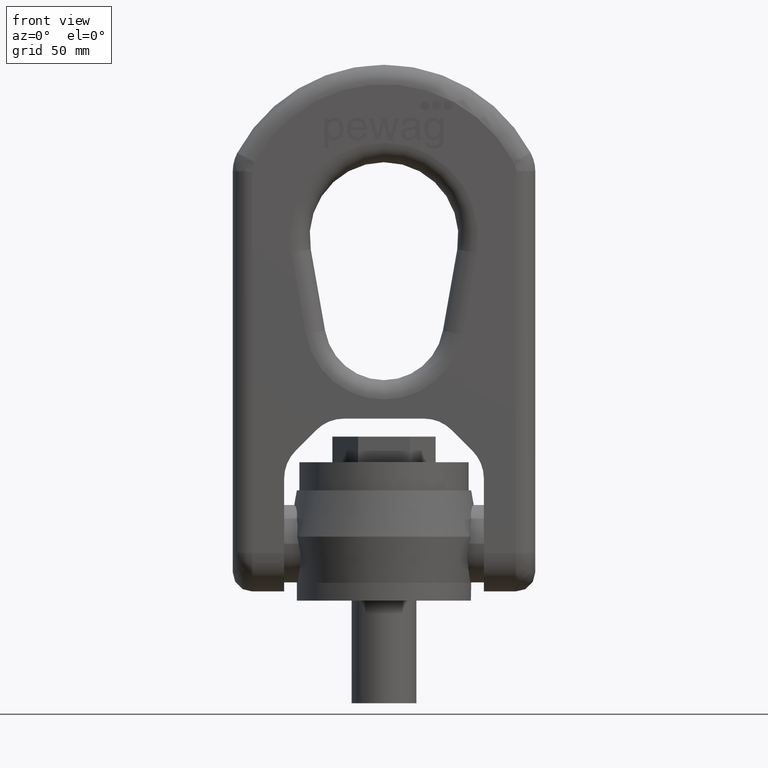
[diagram: clean part render]
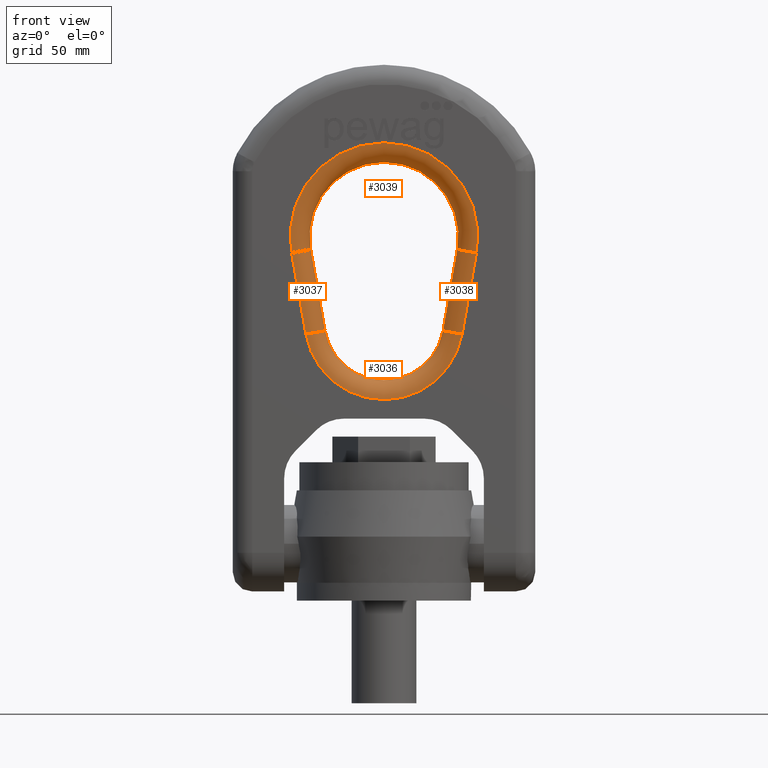
[diagram: same view with one multi-face feature highlighted, each face labeled with its STEP entity id]
A machine part, front view. The highlighted faces form ONE feature: a constant-radius fillet chain: 4 tangent blend faces with common blend radius 7.6 mm. The faces share edges in the B-rep.
Their STEP definitions:
[1] entity #3039 (Torus):
#206=TOROIDAL_SURFACE('',#6063,36.6,7.6);
#2664=FACE_OUTER_BOUND('',#3432,.T.);
#3039=ADVANCED_FACE('',(#2664),#206,.T.);
#3432=EDGE_LOOP('',(#4693,#4694,#4695,#4696));
#4693=ORIENTED_EDGE('',*,*,#5747,.T.);
#4694=ORIENTED_EDGE('',*,*,#5356,.F.);
#4695=ORIENTED_EDGE('',*,*,#5748,.T.);
#4696=ORIENTED_EDGE('',*,*,#5177,.F.);
#4744=VERTEX_POINT('',#7071);
#4745=VERTEX_POINT('',#7073);
#4914=VERTEX_POINT('',#7727);
#4916=VERTEX_POINT('',#7733);
#5177=EDGE_CURVE('',#4744,#4745,#5763,.T.);
#5356=EDGE_CURVE('',#4916,#4914,#5788,.T.);
#5747=EDGE_CURVE('',#4744,#4914,#5825,.T.);
#5748=EDGE_CURVE('',#4916,#4745,#5826,.T.);
#5763=CIRCLE('',#5869,36.6);
#5788=CIRCLE('',#5897,29.);
#5825=CIRCLE('',#6059,7.6);
#5826=CIRCLE('',#6061,7.6);
#5869=AXIS2_PLACEMENT_3D('',#7072,#6194,#6195);
#5897=AXIS2_PLACEMENT_3D('',#7734,#6336,#6337);
#6059=AXIS2_PLACEMENT_3D('',#9840,#6926,#6927);
#6061=AXIS2_PLACEMENT_3D('',#9842,#6930,#6931);
#6063=AXIS2_PLACEMENT_3D('',#9844,#6934,#6935);
#6194=DIRECTION('',(0.,1.,0.));
#6195=DIRECTION('',(0.,0.,-1.));
#6336=DIRECTION('',(0.,-1.,0.));
#6337=DIRECTION('',(0.,0.,-1.));
#6926=DIRECTION('',(-0.173648177666931,0.,0.984807753012208));
#6927=DIRECTION('',(0.984807753012208,0.,0.173648177666932));
#6930=DIRECTION('',(0.173648177666931,1.58542931768114E-16,0.984807753012208));
#6931=DIRECTION('',(0.984807753012208,0.,-0.173648177666932));
#6934=DIRECTION('',(0.,-1.,0.));
#6935=DIRECTION('',(0.,0.,-1.));
#7071=CARTESIAN_POINT('',(-36.0439637602468,-15.2,135.64447669739));
#7072=CARTESIAN_POINT('',(0.,-15.2,142.));
#7073=CARTESIAN_POINT('',(36.0439637602468,-15.2,135.64447669739));
#7727=CARTESIAN_POINT('',(-28.5594248373541,-7.6,136.964202847659));
#7733=CARTESIAN_POINT('',(28.5594248373541,-7.6,136.964202847659));
#7734=CARTESIAN_POINT('',(0.,-7.6,142.));
#9840=CARTESIAN_POINT('',(-36.0439637602468,-7.6,135.64447669739));
#9842=CARTESIAN_POINT('',(36.0439637602468,-7.6,135.64447669739));
#9844=CARTESIAN_POINT('',(0.,-7.6,142.));
[2] entity #3038 (Cylinder):
#1775=LINE('',#7074,#2083);
#1863=LINE('',#7740,#2171);
#2083=VECTOR('',#6196,1.);
#2171=VECTOR('',#6342,1.);
#2663=FACE_OUTER_BOUND('',#3431,.T.);
#3038=ADVANCED_FACE('',(#2663),#3068,.T.);
#3068=CYLINDRICAL_SURFACE('',#6062,7.6);
#3431=EDGE_LOOP('',(#4689,#4690,#4691,#4692));
#4689=ORIENTED_EDGE('',*,*,#5745,.T.);
#4690=ORIENTED_EDGE('',*,*,#5178,.F.);
#4691=ORIENTED_EDGE('',*,*,#5748,.F.);
#4692=ORIENTED_EDGE('',*,*,#5359,.F.);
#4745=VERTEX_POINT('',#7073);
#4746=VERTEX_POINT('',#7075);
#4916=VERTEX_POINT('',#7733);
#4918=VERTEX_POINT('',#7739);
#5178=EDGE_CURVE('',#4745,#4746,#1775,.T.);
#5359=EDGE_CURVE('',#4918,#4916,#1863,.T.);
#5745=EDGE_CURVE('',#4918,#4746,#5823,.T.);
#5748=EDGE_CURVE('',#4916,#4745,#5826,.T.);
#5823=CIRCLE('',#6056,7.6);
#5826=CIRCLE('',#6061,7.6);
#6056=AXIS2_PLACEMENT_3D('',#9837,#6920,#6921);
#6061=AXIS2_PLACEMENT_3D('',#9842,#6930,#6931);
#6062=AXIS2_PLACEMENT_3D('',#9843,#6932,#6933);
#6196=DIRECTION('',(-0.173648177666931,0.,-0.984807753012208));
#6342=DIRECTION('',(0.173648177666931,0.,0.984807753012208));
#6920=DIRECTION('',(0.17364817766693,-7.92714658840564E-17,0.984807753012208));
#6921=DIRECTION('',(0.984807753012208,0.,-0.17364817766693));
#6930=DIRECTION('',(0.173648177666931,1.58542931768114E-16,0.984807753012208));
#6931=DIRECTION('',(0.984807753012208,0.,-0.173648177666932));
#6932=DIRECTION('',(0.173648177666931,0.,0.984807753012208));
#6933=DIRECTION('',(0.984807753012208,0.,-0.173648177666932));
#7073=CARTESIAN_POINT('',(36.0439637602468,-15.2,135.64447669739));
#7074=CARTESIAN_POINT('',(30.4564260915328,-15.2,103.955975900383));
#7075=CARTESIAN_POINT('',(30.4564260915328,-15.2,103.955975900383));
#7733=CARTESIAN_POINT('',(28.5594248373541,-7.6,136.964202847659));
#7739=CARTESIAN_POINT('',(22.97188716864,-7.6,105.275702050652));
#7740=CARTESIAN_POINT('',(28.5594248373541,-7.6,136.964202847659));
#9837=CARTESIAN_POINT('',(30.4564260915328,-7.6,103.955975900383));
#9842=CARTESIAN_POINT('',(36.0439637602468,-7.6,135.64447669739));
#9843=CARTESIAN_POINT('',(36.4197358914007,-7.6,137.775586353122));
[3] entity #3036 (Torus):
#205=TOROIDAL_SURFACE('',#6058,30.9262655562737,7.6);
#2661=FACE_OUTER_BOUND('',#3429,.T.);
#3036=ADVANCED_FACE('',(#2661),#205,.T.);
#3429=EDGE_LOOP('',(#4681,#4682,#4683,#4684));
#4681=ORIENTED_EDGE('',*,*,#5745,.F.);
#4682=ORIENTED_EDGE('',*,*,#5373,.F.);
#4683=ORIENTED_EDGE('',*,*,#5746,.F.);
#4684=ORIENTED_EDGE('',*,*,#5179,.F.);
#4743=VERTEX_POINT('',#7070);
#4746=VERTEX_POINT('',#7075);
#4911=VERTEX_POINT('',#7722);
#4918=VERTEX_POINT('',#7739);
#5179=EDGE_CURVE('',#4746,#4743,#5764,.T.);
#5373=EDGE_CURVE('',#4911,#4918,#5794,.T.);
#5745=EDGE_CURVE('',#4918,#4746,#5823,.T.);
#5746=EDGE_CURVE('',#4743,#4911,#5824,.T.);
#5764=CIRCLE('',#5870,30.9262655562737);
#5794=CIRCLE('',#5908,23.3262655562737);
#5823=CIRCLE('',#6056,7.6);
#5824=CIRCLE('',#6057,7.6);
#5870=AXIS2_PLACEMENT_3D('',#7076,#6197,#6198);
#5908=AXIS2_PLACEMENT_3D('',#7770,#6369,#6370);
#6056=AXIS2_PLACEMENT_3D('',#9837,#6920,#6921);
#6057=AXIS2_PLACEMENT_3D('',#9838,#6922,#6923);
#6058=AXIS2_PLACEMENT_3D('',#9839,#6924,#6925);
#6197=DIRECTION('',(0.,1.,0.));
#6198=DIRECTION('',(0.,0.,-1.));
#6369=DIRECTION('',(0.,-1.,0.));
#6370=DIRECTION('',(0.,0.,-1.));
#6920=DIRECTION('',(0.17364817766693,-7.92714658840564E-17,0.984807753012208));
#6921=DIRECTION('',(0.984807753012208,0.,-0.17364817766693));
#6922=DIRECTION('',(-0.173648177666932,0.,0.984807753012208));
#6923=DIRECTION('',(0.984807753012208,0.,0.173648177666932));
#6924=DIRECTION('',(0.,-1.,0.));
#6925=DIRECTION('',(0.,0.,-1.));
#7070=CARTESIAN_POINT('',(-30.4564260915328,-15.2,103.955975900383));
#7075=CARTESIAN_POINT('',(30.4564260915328,-15.2,103.955975900383));
#7076=CARTESIAN_POINT('',(0.,-15.2,109.326265556274));
#7722=CARTESIAN_POINT('',(-22.97188716864,-7.6,105.275702050652));
#7739=CARTESIAN_POINT('',(22.97188716864,-7.6,105.275702050652));
#7770=CARTESIAN_POINT('',(0.,-7.6,109.326265556274));
#9837=CARTESIAN_POINT('',(30.4564260915328,-7.6,103.955975900383));
#9838=CARTESIAN_POINT('',(-30.4564260915328,-7.6,103.955975900383));
#9839=CARTESIAN_POINT('',(0.,-7.6,109.326265556274));
[4] entity #3037 (Cylinder):
#1774=LINE('',#7069,#2082);
#1859=LINE('',#7728,#2167);
#2082=VECTOR('',#6193,1.);
#2167=VECTOR('',#6330,1.);
#2662=FACE_OUTER_BOUND('',#3430,.T.);
#3037=ADVANCED_FACE('',(#2662),#3067,.T.);
#3067=CYLINDRICAL_SURFACE('',#6060,7.6);
#3430=EDGE_LOOP('',(#4685,#4686,#4687,#4688));
#4685=ORIENTED_EDGE('',*,*,#5746,.T.);
#4686=ORIENTED_EDGE('',*,*,#5353,.F.);
#4687=ORIENTED_EDGE('',*,*,#5747,.F.);
#4688=ORIENTED_EDGE('',*,*,#5176,.F.);
#4743=VERTEX_POINT('',#7070);
#4744=VERTEX_POINT('',#7071);
#4911=VERTEX_POINT('',#7722);
#4914=VERTEX_POINT('',#7727);
#5176=EDGE_CURVE('',#4743,#4744,#1774,.T.);
#5353=EDGE_CURVE('',#4914,#4911,#1859,.T.);
#5746=EDGE_CURVE('',#4743,#4911,#5824,.T.);
#5747=EDGE_CURVE('',#4744,#4914,#5825,.T.);
#5824=CIRCLE('',#6057,7.6);
#5825=CIRCLE('',#6059,7.6);
#6057=AXIS2_PLACEMENT_3D('',#9838,#6922,#6923);
#6059=AXIS2_PLACEMENT_3D('',#9840,#6926,#6927);
#6060=AXIS2_PLACEMENT_3D('',#9841,#6928,#6929);
#6193=DIRECTION('',(-0.173648177666931,0.,0.984807753012208));
#6330=DIRECTION('',(0.173648177666931,0.,-0.984807753012208));
#6922=DIRECTION('',(-0.173648177666932,0.,0.984807753012208));
#6923=DIRECTION('',(0.984807753012208,0.,0.173648177666932));
#6926=DIRECTION('',(-0.173648177666931,0.,0.984807753012208));
#6927=DIRECTION('',(0.984807753012208,0.,0.173648177666932));
#6928=DIRECTION('',(0.173648177666931,0.,-0.984807753012208));
#6929=DIRECTION('',(-0.984807753012208,0.,-0.173648177666932));
#7069=CARTESIAN_POINT('',(-36.0439637602468,-15.2,135.64447669739));
#7070=CARTESIAN_POINT('',(-30.4564260915328,-15.2,103.955975900383));
#7071=CARTESIAN_POINT('',(-36.0439637602468,-15.2,135.64447669739));
#7722=CARTESIAN_POINT('',(-22.97188716864,-7.6,105.275702050652));
#7727=CARTESIAN_POINT('',(-28.5594248373541,-7.6,136.964202847659));
#7728=CARTESIAN_POINT('',(-22.97188716864,-7.6,105.275702050652));
#9838=CARTESIAN_POINT('',(-30.4564260915328,-7.6,103.955975900383));
#9840=CARTESIAN_POINT('',(-36.0439637602468,-7.6,135.64447669739));
#9841=CARTESIAN_POINT('',(-36.4197358914007,-7.6,137.775586353122));